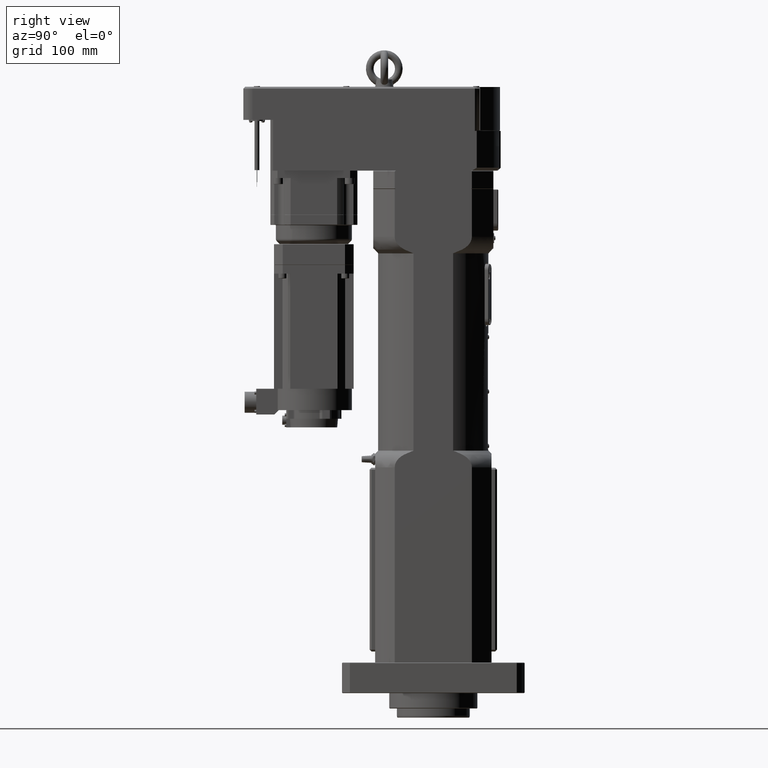
[diagram: clean part render]
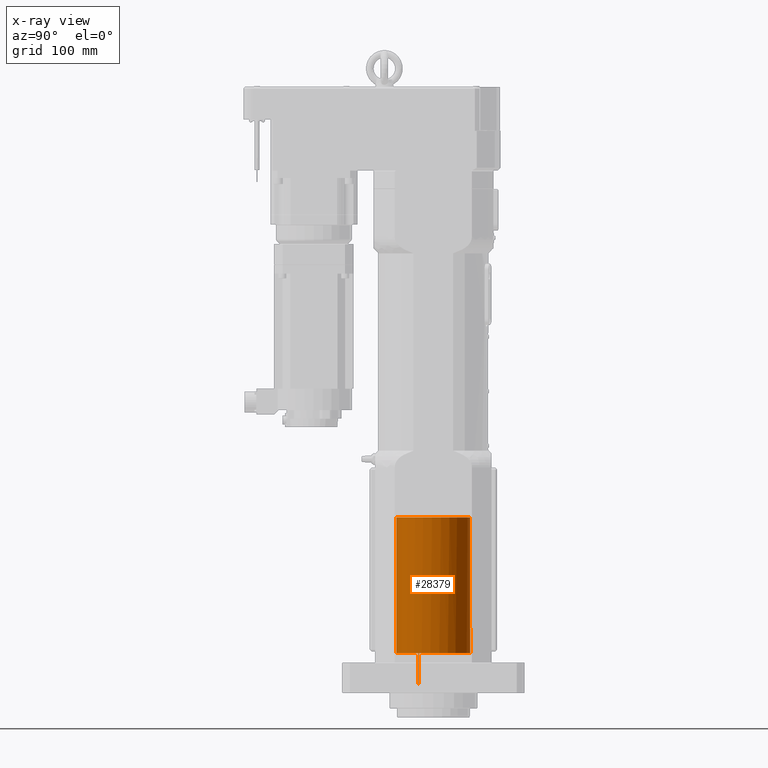
[diagram: x-ray — body ghosted, one internal face saturated and labeled with its STEP entity id]
A machine part, right view, then the same camera in x-ray: the body is ghosted and one INTERNAL B-rep face — a face not visible from any outside direction — is saturated and labeled: STEP entity #28379.
In plain terms, the highlighted cylindrical surface (bore or boss wall) has radius 60.3 mm, axis along (-0, -0, -1).
Its self-contained STEP definition (entity closure, byte-faithful):
#1892=LINE('',#44928,#3511);
#2627=LINE('',#48704,#4246);
#3511=VECTOR('',#34907,10.);
#4246=VECTOR('',#37816,10.);
#4849=FACE_BOUND('',#8757,.T.);
#5316=CYLINDRICAL_SURFACE('',#31233,60.3);
#6720=FACE_OUTER_BOUND('',#8756,.T.);
#8756=EDGE_LOOP('',(#22818,#22819,#22820,#22821));
#8757=EDGE_LOOP('',(#22822));
#9814=CIRCLE('',#30073,60.3);
#9817=CIRCLE('',#30080,60.3);
#10270=CIRCLE('',#31215,60.3);
#11753=VERTEX_POINT('',#44922);
#11754=VERTEX_POINT('',#44923);
#11755=VERTEX_POINT('',#44927);
#11760=VERTEX_POINT('',#44943);
#12662=VERTEX_POINT('',#48808);
#14786=EDGE_CURVE('',#11754,#11753,#9814,.T.);
#14787=EDGE_CURVE('',#11754,#11755,#1892,.T.);
#14796=EDGE_CURVE('',#11760,#11755,#9817,.T.);
#16153=EDGE_CURVE('',#11760,#11753,#2627,.T.);
#16200=EDGE_CURVE('',#12662,#12662,#10270,.T.);
#22818=ORIENTED_EDGE('',*,*,#14787,.F.);
#22819=ORIENTED_EDGE('',*,*,#14786,.T.);
#22820=ORIENTED_EDGE('',*,*,#16153,.F.);
#22821=ORIENTED_EDGE('',*,*,#14796,.T.);
#22822=ORIENTED_EDGE('',*,*,#16200,.F.);
#28379=ADVANCED_FACE('',(#6720,#4849),#5316,.F.);
#30073=AXIS2_PLACEMENT_3D('',#44925,#34903,#34904);
#30080=AXIS2_PLACEMENT_3D('',#44945,#34924,#34925);
#31215=AXIS2_PLACEMENT_3D('',#48809,#37939,#37940);
#31233=AXIS2_PLACEMENT_3D('',#48836,#37975,#37976);
#34903=DIRECTION('center_axis',(-1.5737952727272E-15,-6.46629736812827E-31,
-1.));
#34904=DIRECTION('ref_axis',(1.,1.4053404904437E-13,-1.66533453695309E-16));
#34907=DIRECTION('',(1.66533453693769E-16,1.09611758709107E-14,1.));
#34924=DIRECTION('center_axis',(3.83554217600573E-16,-7.22797944674224E-16,
-1.));
#34925=DIRECTION('ref_axis',(-0.393965198664762,0.919125357196196,-8.15448932615089E-16));
#37816=DIRECTION('',(-1.66533453693769E-16,-1.09611758709107E-14,-1.));
#37939=DIRECTION('center_axis',(-1.60464720643073E-16,-1.09611758709108E-14,
-1.));
#37940=DIRECTION('ref_axis',(-1.82284326498693E-13,1.,-1.09611758709107E-14));
#37975=DIRECTION('center_axis',(-1.66533453693769E-16,-1.09611758709107E-14,
-1.));
#37976=DIRECTION('ref_axis',(1.,1.4053404904437E-13,-1.66533453695309E-16));
#44922=CARTESIAN_POINT('',(-55.6665101489107,-23.1803720384597,15.0000000000001));
#44923=CARTESIAN_POINT('',(-55.1740536505798,-24.329278734955,15.0000000000001));
#44925=CARTESIAN_POINT('Origin',(-3.64480492185646E-13,-1.43484447850868E-12,
15.));
#44927=CARTESIAN_POINT('',(-55.1740536505798,-24.329278734955,65.0000000000001));
#44928=CARTESIAN_POINT('',(-55.1740536505781,-24.3292787349541,286.999999999864));
#44943=CARTESIAN_POINT('',(-55.6665101489107,-23.1803720384597,65.0000000000001));
#44945=CARTESIAN_POINT('Origin',(-1.26754305051593E-12,-9.63060824928934E-13,
65.0000000000001));
#48704=CARTESIAN_POINT('',(-55.6665101489091,-23.1803720384588,286.999999999864));
#48808=CARTESIAN_POINT('',(-60.3000000000003,-6.9202231787991E-12,286.999999999864));
#48809=CARTESIAN_POINT('Origin',(-3.19183392780965E-13,1.54659535837755E-12,
286.999999999864));
#48836=CARTESIAN_POINT('Origin',(-3.19183392780964E-13,1.54659535837755E-12,
286.999999999864));